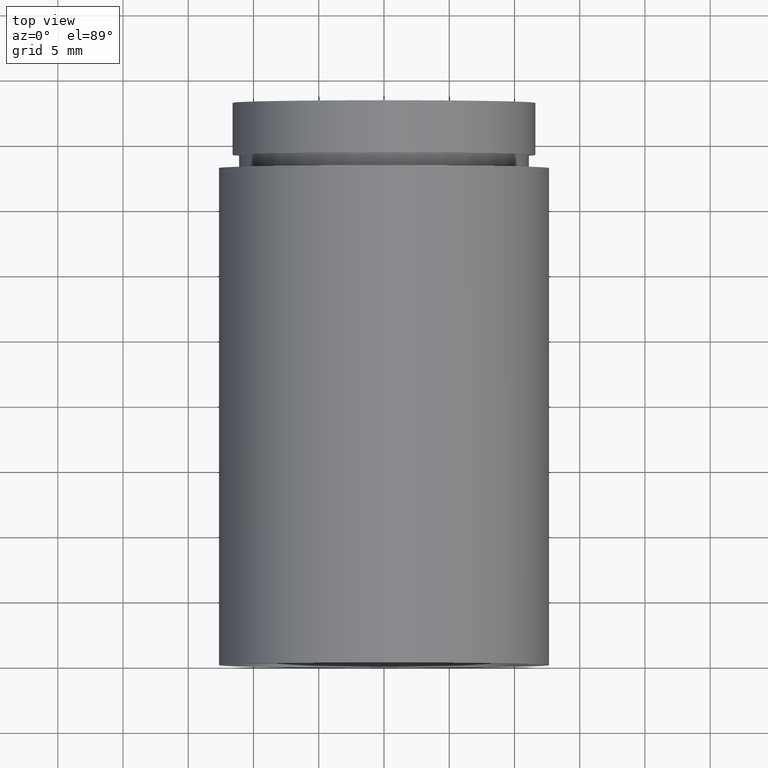
[diagram: clean part render]
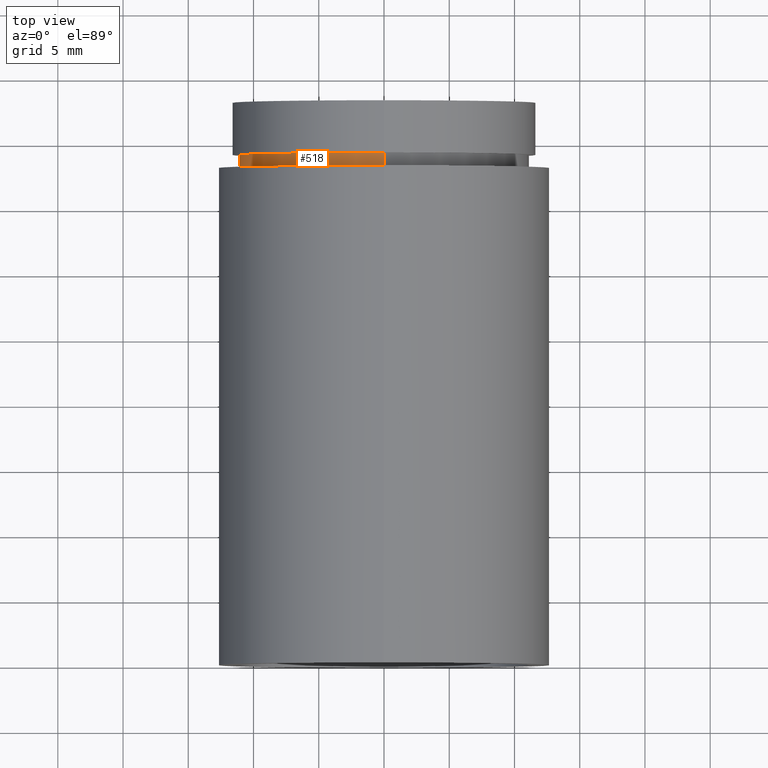
[diagram: same view with one face highlighted and labeled with its STEP entity id]
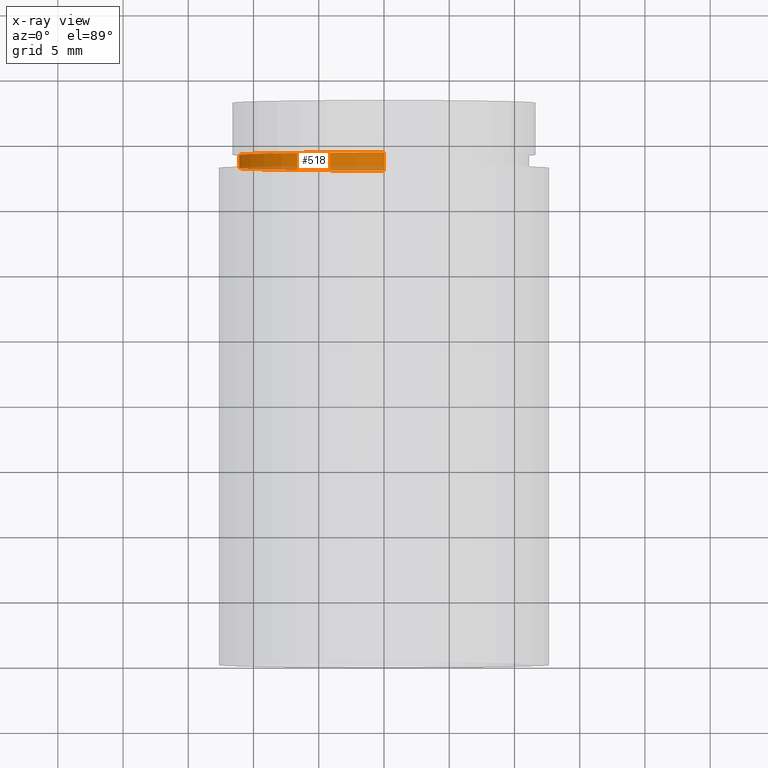
[diagram: x-ray of the same camera — body ghosted, the highlighted face saturated]
A machine part, top view. The second image highlights one B-rep face of the part: STEP entity #518.
The next image is the same camera in x-ray: the body ghosted, the highlighted face saturated — about 23% of this face is hidden behind the body in this view.
In plain terms, the highlighted cylindrical surface (partial cylindrical patch) has radius 11.1 mm, axis along (-0, 1, -0).
Its self-contained STEP definition (entity closure, byte-faithful):
#7 = VECTOR ( 'NONE', #181, 1000.000000000000000 ) ;
#13 = CARTESIAN_POINT ( 'NONE',  ( 1.359357947053563700E-015, 161.3761669434274500, -11.10000000000001400 ) ) ;
#15 = CARTESIAN_POINT ( 'NONE',  ( 0.0000000000000000000, 38.09999999999999400, 11.10000000000001400 ) ) ;
#27 = CARTESIAN_POINT ( 'NONE',  ( 0.0000000000000000000, 38.09999999999999400, 0.0000000000000000000 ) ) ;
#31 = CARTESIAN_POINT ( 'NONE',  ( 0.0000000000000000000, 161.3761669434274500, 0.0000000000000000000 ) ) ;
#63 = DIRECTION ( 'NONE',  ( -0.0000000000000000000, 1.000000000000000000, -0.0000000000000000000 ) ) ;
#108 = CIRCLE ( 'NONE', #484, 11.10000000000001400 ) ;
#126 = ORIENTED_EDGE ( 'NONE', *, *, #537, .T. ) ;
#135 = DIRECTION ( 'NONE',  ( -0.0000000000000000000, 1.000000000000000000, -0.0000000000000000000 ) ) ;
#168 = LINE ( 'NONE', #331, #398 ) ;
#181 = DIRECTION ( 'NONE',  ( -0.0000000000000000000, 1.000000000000000000, -0.0000000000000000000 ) ) ;
#235 = ORIENTED_EDGE ( 'NONE', *, *, #501, .T. ) ;
#242 = AXIS2_PLACEMENT_3D ( 'NONE', #544, #63, #263 ) ;
#263 = DIRECTION ( 'NONE',  ( 0.0000000000000000000, 0.0000000000000000000, 1.000000000000000000 ) ) ;
#274 = VERTEX_POINT ( 'NONE', #308 ) ;
#282 = VERTEX_POINT ( 'NONE', #304 ) ;
#284 = EDGE_CURVE ( 'NONE', #377, #274, #534, .T. ) ;
#288 = DIRECTION ( 'NONE',  ( 0.0000000000000000000, 0.0000000000000000000, 1.000000000000000000 ) ) ;
#304 = CARTESIAN_POINT ( 'NONE',  ( 1.359357947053563700E-015, 38.09999999999999400, -11.10000000000001400 ) ) ;
#308 = CARTESIAN_POINT ( 'NONE',  ( 0.0000000000000000000, 39.09999999999999400, 11.10000000000001400 ) ) ;
#331 = CARTESIAN_POINT ( 'NONE',  ( 0.0000000000000000000, 161.3761669434274500, 11.10000000000001400 ) ) ;
#377 = VERTEX_POINT ( 'NONE', #579 ) ;
#394 = ORIENTED_EDGE ( 'NONE', *, *, #423, .F. ) ;
#398 = VECTOR ( 'NONE', #135, 1000.000000000000000 ) ;
#412 = LINE ( 'NONE', #13, #7 ) ;
#422 = DIRECTION ( 'NONE',  ( 0.0000000000000000000, 0.0000000000000000000, 1.000000000000000000 ) ) ;
#423 = EDGE_CURVE ( 'NONE', #282, #377, #412, .T. ) ;
#457 = ORIENTED_EDGE ( 'NONE', *, *, #284, .F. ) ;
#484 = AXIS2_PLACEMENT_3D ( 'NONE', #27, #556, #422 ) ;
#495 = CYLINDRICAL_SURFACE ( 'NONE', #557, 11.10000000000001400 ) ;
#501 = EDGE_CURVE ( 'NONE', #282, #503, #108, .T. ) ;
#503 = VERTEX_POINT ( 'NONE', #15 ) ;
#518 = ADVANCED_FACE ( 'NONE', ( #615 ), #495, .T. ) ;
#534 = CIRCLE ( 'NONE', #242, 11.10000000000001400 ) ;
#535 = EDGE_LOOP ( 'NONE', ( #394, #235, #126, #457 ) ) ;
#537 = EDGE_CURVE ( 'NONE', #503, #274, #168, .T. ) ;
#544 = CARTESIAN_POINT ( 'NONE',  ( 0.0000000000000000000, 39.09999999999999400, 0.0000000000000000000 ) ) ;
#556 = DIRECTION ( 'NONE',  ( -0.0000000000000000000, 1.000000000000000000, -0.0000000000000000000 ) ) ;
#557 = AXIS2_PLACEMENT_3D ( 'NONE', #31, #558, #288 ) ;
#558 = DIRECTION ( 'NONE',  ( -0.0000000000000000000, 1.000000000000000000, -0.0000000000000000000 ) ) ;
#579 = CARTESIAN_POINT ( 'NONE',  ( 1.359357947053563700E-015, 39.09999999999999400, -11.10000000000001400 ) ) ;
#615 = FACE_OUTER_BOUND ( 'NONE', #535, .T. ) ;